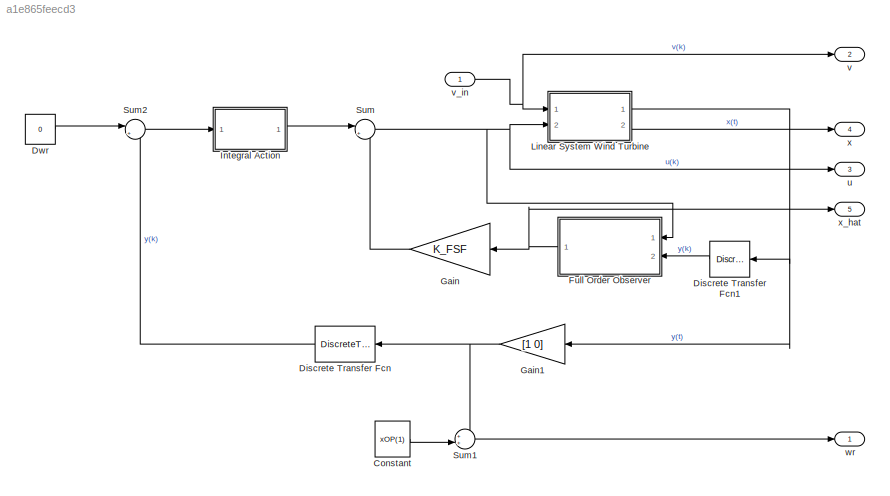
MODEL slx_a1e865feecd3
KIND model
CONFIG AbsTol = auto
CONFIG EnableMultiTasking = off
CONFIG FixedStep = STEP_SIZE
CONFIG MaxStep = auto
CONFIG MinStep = auto
CONFIG RelTol = 1e-3
CONFIG SampleTimeConstraint = Unconstrained
CONFIG SolverName = ode4
CONFIG StartTime = 0.0
CONFIG StopTime = TIME_SIM
BLOCK [Constant] Constant
  Value = xOP(1)
BLOCK [DiscreteTransferFcn] Discrete Transfer Fcn
  Denominator = 1
  InputPortMap = u0
  NameLocation = top
  Ports = [1, 1]
  SampleTime = Ts
BLOCK [DiscreteTransferFcn] Discrete Transfer Fcn1
  Denominator = 1
  InputPortMap = u0
  NameLocation = top
  Ports = [1, 1]
  SampleTime = Ts
BLOCK [Constant] Dwr
  SampleTime = Ts
  Value = 0
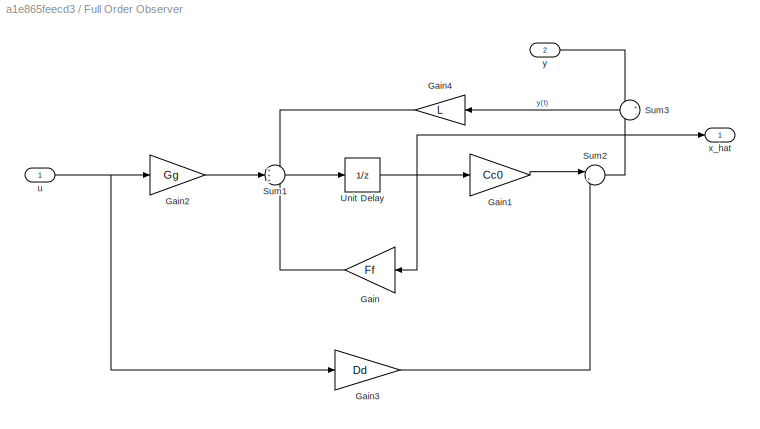
BLOCK [SubSystem] Full Order Observer
  Ports = [2, 1]
  RequestExecContextInheritance = off
BLOCK [Gain] Full Order Observer/Gain
  Gain = Ff
  Multiplication = Matrix(K*u) (u vector)
  NameLocation = top
BLOCK [Gain] Full Order Observer/Gain1
  Gain = Cc0
  Multiplication = Matrix(K*u) (u vector)
BLOCK [Gain] Full Order Observer/Gain2
  Gain = Gg
  Multiplication = Matrix(K*u) (u vector)
BLOCK [Gain] Full Order Observer/Gain3
  Gain = Dd
  Multiplication = Matrix(K*u) (u vector)
BLOCK [Gain] Full Order Observer/Gain4
  Gain = L
  Multiplication = Matrix(K*u) (u vector)
  NameLocation = top
BLOCK [Sum] Full Order Observer/Sum1
  Inputs = +++
  Ports = [3, 1]
BLOCK [Sum] Full Order Observer/Sum2
  Inputs = |++
  Ports = [2, 1]
BLOCK [Sum] Full Order Observer/Sum3
  Inputs = +-
  NameLocation = top
  Ports = [2, 1]
BLOCK [UnitDelay] Full Order Observer/Unit Delay
  HasFrameUpgradeWarning = on
  SampleTime = Ts
BLOCK [Inport] Full Order Observer/u
BLOCK [Outport] Full Order Observer/x_hat
BLOCK [Inport] Full Order Observer/y
  Port = 2
BLOCK [Gain] Gain
  Gain = K_FSF
  Multiplication = Matrix(K*u) (u vector)
  NameLocation = top
BLOCK [Gain] Gain1
  Gain = [1 0]
  Multiplication = Matrix(K*u) (u vector)
  NameLocation = top
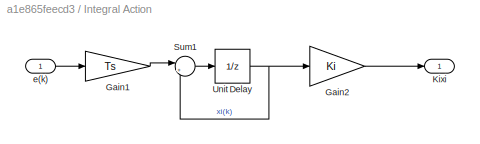
BLOCK [SubSystem] Integral Action
  Ports = [1, 1]
  RequestExecContextInheritance = off
BLOCK [Gain] Integral Action/Gain1
  Gain = Ts
  Multiplication = Matrix(K*u) (u vector)
BLOCK [Gain] Integral Action/Gain2
  Gain = Ki
  Multiplication = Matrix(K*u) (u vector)
BLOCK [Outport] Integral Action/Kixi
BLOCK [Sum] Integral Action/Sum1
  Inputs = |++
  Ports = [2, 1]
BLOCK [UnitDelay] Integral Action/Unit Delay
  HasFrameUpgradeWarning = on
  SampleTime = Ts
BLOCK [Inport] Integral Action/e(k)
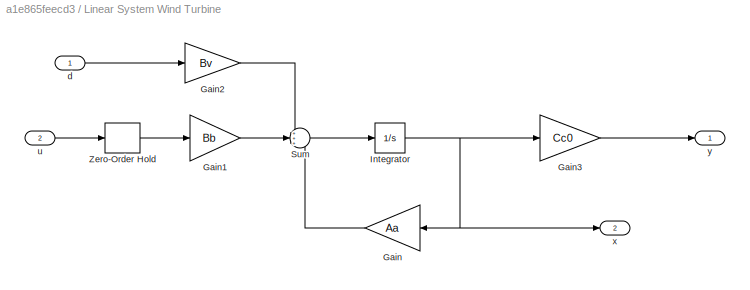
BLOCK [SubSystem] Linear System Wind Turbine
  Ports = [2, 2]
  RequestExecContextInheritance = off
BLOCK [Gain] Linear System Wind Turbine/Gain
  Gain = Aa
  Multiplication = Matrix(K*u) (u vector)
  NameLocation = top
BLOCK [Gain] Linear System Wind Turbine/Gain1
  Gain = Bb
  Multiplication = Matrix(K*u) (u vector)
BLOCK [Gain] Linear System Wind Turbine/Gain2
  Gain = Bv
  Multiplication = Matrix(K*u) (u vector)
BLOCK [Gain] Linear System Wind Turbine/Gain3
  Gain = Cc0
  Multiplication = Matrix(K*u) (u vector)
BLOCK [Integrator] Linear System Wind Turbine/Integrator
  Ports = [1, 1]
BLOCK [Sum] Linear System Wind Turbine/Sum
  Inputs = +++
  Ports = [3, 1]
BLOCK [ZeroOrderHold] Linear System Wind Turbine/Zero-Order Hold
  SampleTime = -1
BLOCK [Inport] Linear System Wind Turbine/d
BLOCK [Inport] Linear System Wind Turbine/u
  Port = 2
BLOCK [Outport] Linear System Wind Turbine/x
  Port = 2
BLOCK [Outport] Linear System Wind Turbine/y
BLOCK [Sum] Sum
  Inputs = |+-
  Ports = [2, 1]
BLOCK [Sum] Sum1
  Inputs = ++|
  Ports = [2, 1]
BLOCK [Sum] Sum2
  Inputs = |+-
  Ports = [2, 1]
BLOCK [Outport] u
  Port = 3
BLOCK [Outport] v
  Port = 2
BLOCK [Inport] v_in
BLOCK [Outport] wr
BLOCK [Outport] x
  Port = 4
BLOCK [Outport] x_hat
  Port = 5
LINE Constant:1 -> Sum1:2
LINE Discrete Transfer Fcn1:1 -> Full Order Observer:2
LINE Discrete Transfer Fcn:1 -> Sum2:2
LINE Dwr:1 -> Sum2:1
LINE Full Order Observer/Gain1:1 -> Full Order Observer/Sum2:1
LINE Full Order Observer/Gain2:1 -> Full Order Observer/Sum1:2
LINE Full Order Observer/Gain3:1 -> Full Order Observer/Sum2:2
LINE Full Order Observer/Gain4:1 -> Full Order Observer/Sum1:1
LINE Full Order Observer/Gain:1 -> Full Order Observer/Sum1:3
LINE Full Order Observer/Sum1:1 -> Full Order Observer/Unit Delay:1
LINE Full Order Observer/Sum2:1 -> Full Order Observer/Sum3:2
LINE Full Order Observer/Sum3:1 -> Full Order Observer/Gain4:1
NET Full Order Observer/Unit Delay:1 -> Full Order Observer/Gain1:1, Full Order Observer/Gain:1, Full Order Observer/x_hat:1
NET Full Order Observer/u:1 -> Full Order Observer/Gain2:1, Full Order Observer/Gain3:1
LINE Full Order Observer/y:1 -> Full Order Observer/Sum3:1
NET Full Order Observer:1 -> Gain:1, x_hat:1
NET Gain1:1 -> Discrete Transfer Fcn:1, Sum1:1
LINE Gain:1 -> Sum:2
LINE Integral Action/Gain1:1 -> Integral Action/Sum1:1
LINE Integral Action/Gain2:1 -> Integral Action/Kixi:1
LINE Integral Action/Sum1:1 -> Integral Action/Unit Delay:1
NET Integral Action/Unit Delay:1 -> Integral Action/Gain2:1, Integral Action/Sum1:2
LINE Integral Action/e(k):1 -> Integral Action/Gain1:1
LINE Integral Action:1 -> Sum:1
LINE Linear System Wind Turbine/Gain1:1 -> Linear System Wind Turbine/Sum:2
LINE Linear System Wind Turbine/Gain2:1 -> Linear System Wind Turbine/Sum:1
LINE Linear System Wind Turbine/Gain3:1 -> Linear System Wind Turbine/y:1
LINE Linear System Wind Turbine/Gain:1 -> Linear System Wind Turbine/Sum:3
NET Linear System Wind Turbine/Integrator:1 -> Linear System Wind Turbine/Gain3:1, Linear System Wind Turbine/Gain:1, Linear System Wind Turbine/x:1
LINE Linear System Wind Turbine/Sum:1 -> Linear System Wind Turbine/Integrator:1
LINE Linear System Wind Turbine/Zero-Order Hold:1 -> Linear System Wind Turbine/Gain1:1
LINE Linear System Wind Turbine/d:1 -> Linear System Wind Turbine/Gain2:1
LINE Linear System Wind Turbine/u:1 -> Linear System Wind Turbine/Zero-Order Hold:1
NET Linear System Wind Turbine:1 -> Discrete Transfer Fcn1:1, Gain1:1
LINE Linear System Wind Turbine:2 -> x:1
LINE Sum1:1 -> wr:1
LINE Sum2:1 -> Integral Action:1
NET Sum:1 -> Full Order Observer:1, Linear System Wind Turbine:2, u:1
NET v_in:1 -> Linear System Wind Turbine:1, v:1
note: NET lines group one-source signal fan-out (src -> all destinations, sorted); 1:1 wires keep LINE
